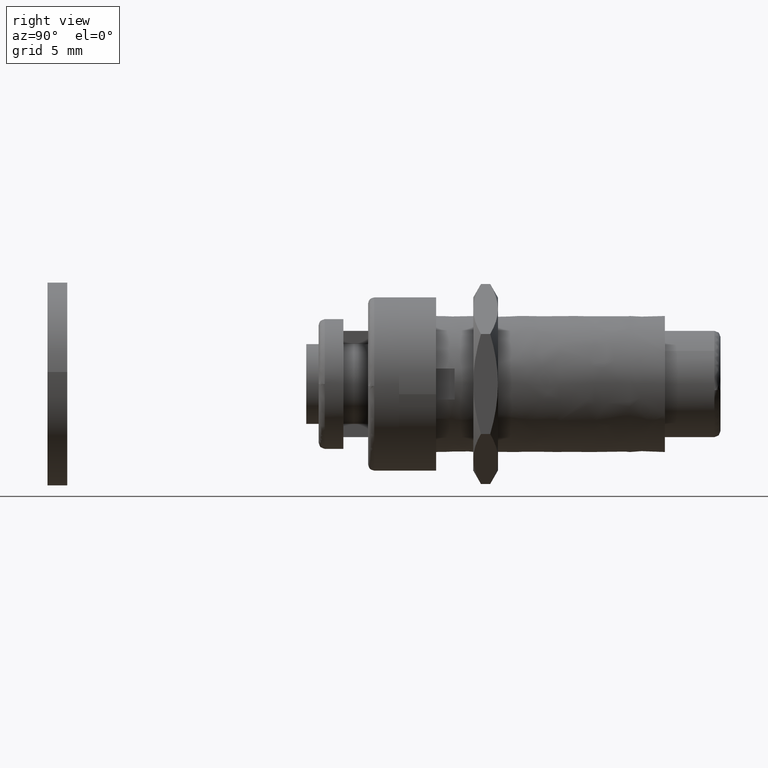
[diagram: clean part render]
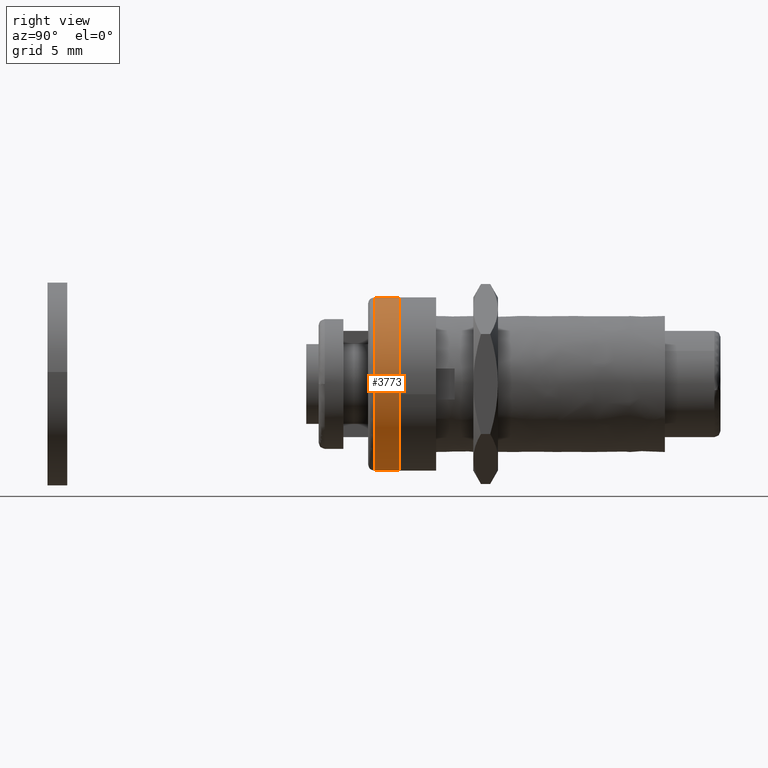
[diagram: same view with one face highlighted and labeled with its STEP entity id]
A machine part, right view. The second image highlights one B-rep face of the part: STEP entity #3773.
In plain terms, the highlighted face is a freeform B-spline surface patch.
Its self-contained STEP definition (entity closure, byte-faithful):
#3626=CARTESIAN_POINT('',(-4.580377599018934,2.550000000015002,-5.293405430382745));
#3627=CARTESIAN_POINT('',(0.133356005849177,2.550000000015003,-9.372193668962748));
#3628=CARTESIAN_POINT('',(4.729131453309621,2.550000000015003,-5.160941357670867));
#3629=CARTESIAN_POINT('',(9.890072810980486,2.550000000015003,-0.431809904361247));
#3630=CARTESIAN_POINT('',(5.160941357670866,2.550000000015003,4.729131453309619));
#3631=CARTESIAN_POINT('',(0.431809904361245,2.550000000015003,9.890072810980485));
#3632=CARTESIAN_POINT('',(-4.729131453309621,2.550000000015003,5.160941357670864));
#3633=CARTESIAN_POINT('',(-4.580377599018934,0.448749999384538,-5.293405430382745));
#3634=CARTESIAN_POINT('',(0.133356005849177,0.448749999384538,-9.372193668962748));
#3635=CARTESIAN_POINT('',(4.729131453309621,0.448749999384538,-5.160941357670867));
#3636=CARTESIAN_POINT('',(9.890072810980486,0.448749999384538,-0.431809904361247));
#3637=CARTESIAN_POINT('',(5.160941357670866,0.448749999384538,4.729131453309619));
#3638=CARTESIAN_POINT('',(0.431809904361245,0.448749999384538,9.890072810980485));
#3639=CARTESIAN_POINT('',(-4.729131453309621,0.448749999384538,5.160941357670864));
#3647=(BOUNDED_SURFACE()B_SPLINE_SURFACE(2,1,((#3626,#3633),(#3627,#3634),(#3628,#3635),(#3629,#3636),(#3630,#3637),(#3631,#3638),(#3632,#3639)),.UNSPECIFIED.,.F.,.F.,.U.)B_SPLINE_SURFACE_WITH_KNOTS((3,2,2,3),(2,2),(0.0,10.670141366730920,22.268121113177578,33.866100859624240),(0.0,2.101250000630465),.UNSPECIFIED.)GEOMETRIC_REPRESENTATION_ITEM()RATIONAL_B_SPLINE_SURFACE(((0.956886118190660,0.956886118190660),(0.730538238691624,0.730538238691624),(1.0,1.0),(0.707106781186548,0.707106781186548),(1.0,1.0),(0.707106781186548,0.707106781186548),(1.0,1.0)))REPRESENTATION_ITEM('')SURFACE());
#3648=CARTESIAN_POINT('',(-4.580377008782543,2.500000000000042,-5.293405941113496));
#3649=VERTEX_POINT('',#3648);
#3650=CARTESIAN_POINT('',(0.0,2.500000000000000,-7.000000000000002));
#3651=VERTEX_POINT('',#3650);
#3652=CARTESIAN_POINT('',(-4.580377008782543,2.500000000000042,-5.293405941113498));
#3653=CARTESIAN_POINT('',(-2.608116396006176,2.500000000000000,-7.000000000000002));
#3654=CARTESIAN_POINT('',(0.0,2.500000000000000,-7.000000000000002));
#3662=(BOUNDED_CURVE()B_SPLINE_CURVE(2,(#3652,#3653,#3654),.UNSPECIFIED.,.F.,.U.)B_SPLINE_CURVE_WITH_KNOTS((3,3),(0.885882153641707,1.0),.UNSPECIFIED.)CURVE()GEOMETRIC_REPRESENTATION_ITEM()RATIONAL_B_SPLINE_CURVE((0.854663303755701,0.866302626624242,1.0))REPRESENTATION_ITEM(''));
#3663=EDGE_CURVE('',#3649,#3651,#3662,.T.);
#3664=ORIENTED_EDGE('',*,*,#3663,.T.);
#3665=CARTESIAN_POINT('',(0.0,2.500000000000000,6.999999999999998));
#3666=VERTEX_POINT('',#3665);
#3667=CARTESIAN_POINT('',(0.0,2.500000000000000,-7.000000000000002));
#3668=CARTESIAN_POINT('',(6.999999999999999,2.500000000000000,-7.000000000000002));
#3669=CARTESIAN_POINT('',(7.0,2.500000000000000,-1.653219E-015));
#3670=CARTESIAN_POINT('',(6.999999999999999,2.500000000000000,6.999999999999996));
#3671=CARTESIAN_POINT('',(0.0,2.500000000000000,6.999999999999998));
#3679=(BOUNDED_CURVE()B_SPLINE_CURVE(2,(#3667,#3668,#3669,#3670,#3671),.UNSPECIFIED.,.F.,.U.)B_SPLINE_CURVE_WITH_KNOTS((3,2,3),(0.0,0.250000000000000,0.500000000000000),.UNSPECIFIED.)CURVE()GEOMETRIC_REPRESENTATION_ITEM()RATIONAL_B_SPLINE_CURVE((1.0,0.707106781186547,1.0,0.707106781186547,1.0))REPRESENTATION_ITEM(''));
#3680=EDGE_CURVE('',#3651,#3666,#3679,.T.);
#3681=ORIENTED_EDGE('',*,*,#3680,.T.);
#3682=CARTESIAN_POINT('',(-4.729130670820243,2.500000000000000,5.160942074690057));
#3683=VERTEX_POINT('',#3682);
#3684=CARTESIAN_POINT('',(0.0,2.500000000000000,6.999999999999998));
#3685=CARTESIAN_POINT('',(-2.722150512059374,2.500000000000000,6.999999999999999));
#3686=CARTESIAN_POINT('',(-4.729130670820244,2.500000000000000,5.160942074690057));
#3694=(BOUNDED_CURVE()B_SPLINE_CURVE(2,(#3684,#3685,#3686),.UNSPECIFIED.,.F.,.U.)B_SPLINE_CURVE_WITH_KNOTS((3,3),(0.500000000000000,0.618415186195858),.UNSPECIFIED.)CURVE()GEOMETRIC_REPRESENTATION_ITEM()RATIONAL_B_SPLINE_CURVE((1.0,0.861267979834803,0.853959783663121))REPRESENTATION_ITEM(''));
#3695=EDGE_CURVE('',#3666,#3683,#3694,.T.);
#3696=ORIENTED_EDGE('',*,*,#3695,.T.);
#3697=CARTESIAN_POINT('',(-4.729130744530560,0.499999999838195,5.160942007139392));
#3698=VERTEX_POINT('',#3697);
#3699=CARTESIAN_POINT('',(-4.729130670820243,2.500000000000000,5.160942074690057));
#3700=CARTESIAN_POINT('',(-4.729130744530560,0.499999999838195,5.160942007139392));
#3701=QUASI_UNIFORM_CURVE('',1,(#3699,#3700),.UNSPECIFIED.,.F.,.U.);
#3702=EDGE_CURVE('',#3683,#3698,#3701,.T.);
#3703=ORIENTED_EDGE('',*,*,#3702,.T.);
#3704=CARTESIAN_POINT('',(0.0,0.500000000000000,6.999999999999998));
#3705=VERTEX_POINT('',#3704);
#3706=CARTESIAN_POINT('',(0.0,0.500000000000000,6.999999999999998));
#3707=CARTESIAN_POINT('',(-2.722150016242962,0.500000000000000,6.999999999999997));
#3708=CARTESIAN_POINT('',(-4.729130744530560,0.499999999838195,5.160942007139392));
#3716=(BOUNDED_CURVE()B_SPLINE_CURVE(2,(#3706,#3707,#3708),.UNSPECIFIED.,.F.,.U.)B_SPLINE_CURVE_WITH_KNOTS((3,3),(0.500000000000000,0.618415167619761),.UNSPECIFIED.)CURVE()GEOMETRIC_REPRESENTATION_ITEM()RATIONAL_B_SPLINE_CURVE((1.0,0.861268001598055,0.853959785956036))REPRESENTATION_ITEM(''));
#3717=EDGE_CURVE('',#3705,#3698,#3716,.T.);
#3718=ORIENTED_EDGE('',*,*,#3717,.F.);
#3719=CARTESIAN_POINT('',(6.997789324981641,0.499999999399915,-0.175910668161384));
#3720=VERTEX_POINT('',#3719);
#3721=CARTESIAN_POINT('',(6.997789324981641,0.499999999399915,-0.175910668161384));
#3722=CARTESIAN_POINT('',(7.000000000000001,0.500000000000000,-0.087969224921707));
#3723=CARTESIAN_POINT('',(7.0,0.500000000000000,-1.653219E-015));
#3724=CARTESIAN_POINT('',(6.999999999999999,0.500000000000000,6.999999999999996));
#3725=CARTESIAN_POINT('',(0.0,0.500000000000000,6.999999999999998));
#3733=(BOUNDED_CURVE()B_SPLINE_CURVE(2,(#3721,#3722,#3723,#3724,#3725),.UNSPECIFIED.,.F.,.U.)B_SPLINE_CURVE_WITH_KNOTS((3,2,3),(0.245579891766906,0.250000000000000,0.500000000000000),.UNSPECIFIED.)CURVE()GEOMETRIC_REPRESENTATION_ITEM()RATIONAL_B_SPLINE_CURVE((0.989826157675018,0.994821521088421,1.0,0.707106781186547,1.0))REPRESENTATION_ITEM(''));
#3734=EDGE_CURVE('',#3720,#3705,#3733,.T.);
#3735=ORIENTED_EDGE('',*,*,#3734,.F.);
#3736=CARTESIAN_POINT('',(0.0,0.500000000000000,-7.000000000000002));
#3737=VERTEX_POINT('',#3736);
#3738=CARTESIAN_POINT('',(0.0,0.500000000000000,-7.000000000000002));
#3739=CARTESIAN_POINT('',(6.826245133151315,0.500000000000000,-7.000000000000004));
#3740=CARTESIAN_POINT('',(6.997789324981641,0.499999999399915,-0.175910668161384));
#3748=(BOUNDED_CURVE()B_SPLINE_CURVE(2,(#3738,#3739,#3740),.UNSPECIFIED.,.F.,.U.)B_SPLINE_CURVE_WITH_KNOTS((3,3),(0.0,0.245579891766906),.UNSPECIFIED.)CURVE()GEOMETRIC_REPRESENTATION_ITEM()RATIONAL_B_SPLINE_CURVE((1.0,0.712285260098126,0.989826157675018))REPRESENTATION_ITEM(''));
#3749=EDGE_CURVE('',#3737,#3720,#3748,.T.);
#3750=ORIENTED_EDGE('',*,*,#3749,.F.);
#3751=CARTESIAN_POINT('',(-4.580377015895147,0.500000000000000,-5.293405934958972));
#3752=VERTEX_POINT('',#3751);
#3753=CARTESIAN_POINT('',(-4.580377015895147,0.500000000000000,-5.293405934958972));
#3754=CARTESIAN_POINT('',(-2.608116406717599,0.500000000000000,-7.000000000000002));
#3755=CARTESIAN_POINT('',(0.0,0.500000000000000,-7.000000000000002));
#3763=(BOUNDED_CURVE()B_SPLINE_CURVE(2,(#3753,#3754,#3755),.UNSPECIFIED.,.F.,.U.)B_SPLINE_CURVE_WITH_KNOTS((3,3),(0.885882153235691,1.0),.UNSPECIFIED.)CURVE()GEOMETRIC_REPRESENTATION_ITEM()RATIONAL_B_SPLINE_CURVE((0.854663303672878,0.866302626148564,1.0))REPRESENTATION_ITEM(''));
#3764=EDGE_CURVE('',#3752,#3737,#3763,.T.);
#3765=ORIENTED_EDGE('',*,*,#3764,.F.);
#3766=CARTESIAN_POINT('',(-4.580377008782543,2.500000000000042,-5.293405941113496));
#3767=CARTESIAN_POINT('',(-4.580377015895147,0.500000000000000,-5.293405934958972));
#3768=QUASI_UNIFORM_CURVE('',1,(#3766,#3767),.UNSPECIFIED.,.F.,.U.);
#3769=EDGE_CURVE('',#3649,#3752,#3768,.T.);
#3770=ORIENTED_EDGE('',*,*,#3769,.F.);
#3771=EDGE_LOOP('',(#3664,#3681,#3696,#3703,#3718,#3735,#3750,#3765,#3770));
#3772=FACE_OUTER_BOUND('',#3771,.T.);
#3773=ADVANCED_FACE('',(#3772),#3647,.T.);